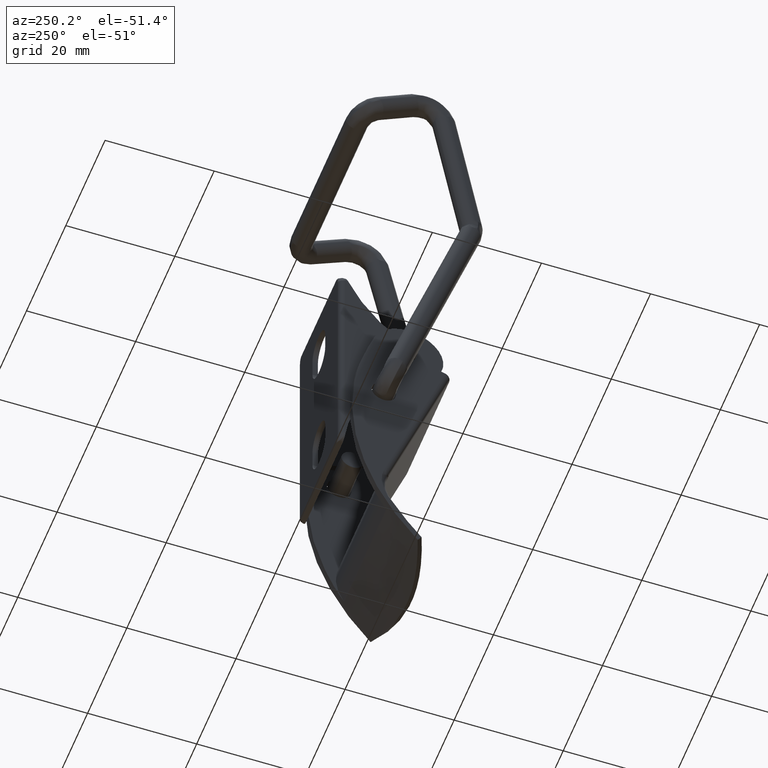
[diagram: clean part render]
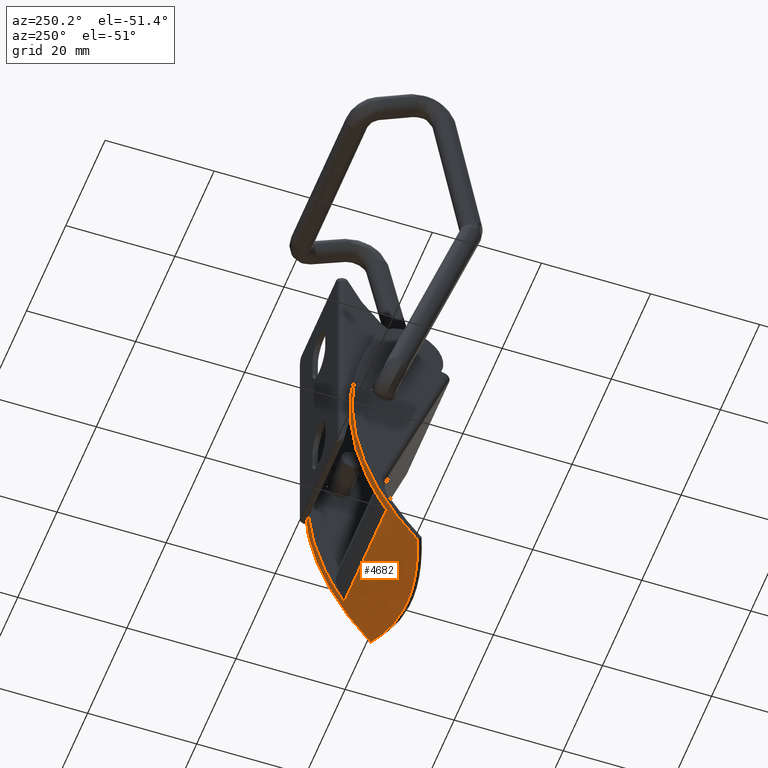
[diagram: same view with one face highlighted and labeled with its STEP entity id]
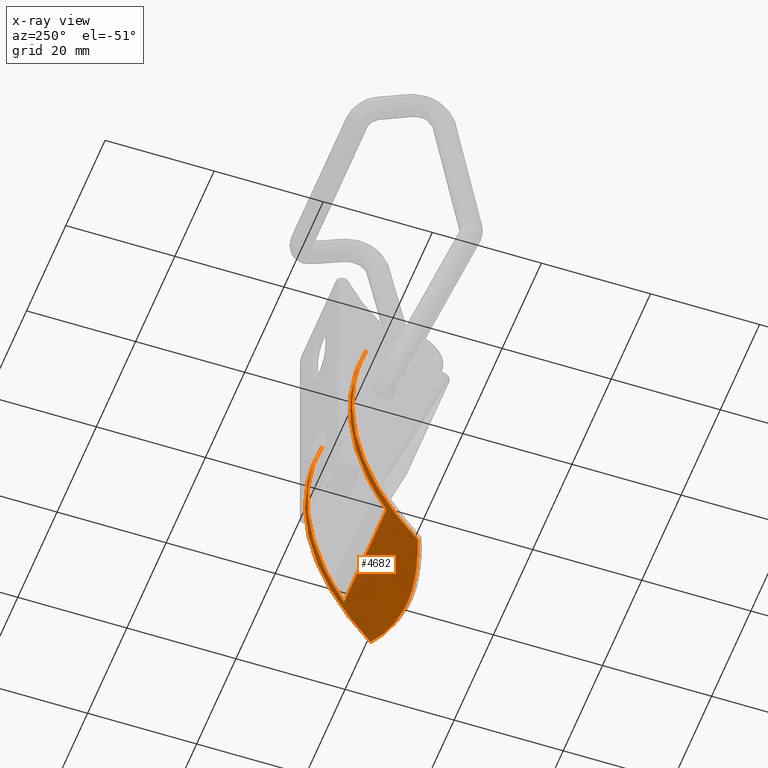
[diagram: x-ray of the same camera — body ghosted, the highlighted face saturated]
A machine part, auxiliary view. The second image highlights one B-rep face of the part: STEP entity #4682.
The next image is the same camera in x-ray: the body ghosted, the highlighted face saturated — about 0% of this face is hidden behind the body in this view.
In plain terms, the highlighted face is a freeform B-spline surface patch.
Its self-contained STEP definition (entity closure, byte-faithful):
#3988=CARTESIAN_POINT('',(10.800000000000001,7.351222833274220,-1.237908472875666));
#3989=VERTEX_POINT('',#3988);
#3995=CARTESIAN_POINT('',(10.800000000000001,3.491723439071675,-43.093581012958452));
#3996=VERTEX_POINT('',#3995);
#3997=CARTESIAN_POINT('',(10.800000000000001,7.351222833274220,-1.237908472875666));
#3998=CARTESIAN_POINT('',(10.800000000000001,15.116134762227537,-23.059686672458977));
#3999=CARTESIAN_POINT('',(10.800000000000001,3.491723439071712,-43.093581012958467));
#4007=(BOUNDED_CURVE()B_SPLINE_CURVE(2,(#3997,#3998,#3999),.UNSPECIFIED.,.F.,.U.)CURVE()GEOMETRIC_REPRESENTATION_ITEM()QUASI_UNIFORM_CURVE()RATIONAL_B_SPLINE_CURVE((1.0,0.907370207833799,1.0))REPRESENTATION_ITEM(''));
#4008=EDGE_CURVE('',#3989,#3996,#4007,.T.);
#4319=CARTESIAN_POINT('',(11.999700000000001,-1.800441101581595,-50.548769654623598));
#4320=VERTEX_POINT('',#4319);
#4368=CARTESIAN_POINT('',(-12.0,-1.800327680869380,-50.548637394887393));
#4369=VERTEX_POINT('',#4368);
#4377=CARTESIAN_POINT('',(-12.000000000000011,-1.800327680869381,-50.548637394887443));
#4378=CARTESIAN_POINT('',(-11.082257795288429,-2.147301615108073,-50.953244648169871));
#4379=CARTESIAN_POINT('',(-10.144366484401029,-2.465155834544160,-51.310892424356588));
#4380=CARTESIAN_POINT('',(-8.225379689255352,-3.030285627931445,-51.932931185863971));
#4381=CARTESIAN_POINT('',(-7.244284325683143,-3.277562118253880,-52.197321774737617));
#4382=CARTESIAN_POINT('',(-5.736454682988764,-3.584187215474784,-52.520525320017668));
#4383=CARTESIAN_POINT('',(-5.227797054403064,-3.675658587683067,-52.615988812778788));
#4384=CARTESIAN_POINT('',(-4.455110162659131,-3.795145213811012,-52.739956990909427));
#4385=CARTESIAN_POINT('',(-4.195930007933858,-3.832019346426704,-52.778072354226580));
#4386=CARTESIAN_POINT('',(-3.674215325152278,-3.899573157093331,-52.847715467953478));
#4387=CARTESIAN_POINT('',(-3.411249007813451,-3.930284451381066,-52.879275453781382));
#4388=CARTESIAN_POINT('',(-2.099702148873025,-4.066503551088239,-53.018970115514797));
#4389=CARTESIAN_POINT('',(-1.053014184085137,-4.121098793358340,-53.074175807225217));
#4390=CARTESIAN_POINT('',(1.035344092723734,-4.121709979235948,-53.074796742458737));
#4391=CARTESIAN_POINT('',(2.077014358148359,-4.067729878400605,-53.020206165222177));
#4392=CARTESIAN_POINT('',(3.635804333514295,-3.907500568505123,-52.855920530753849));
#4393=CARTESIAN_POINT('',(4.154781634922055,-3.840901975268446,-52.787399876906584));
#4394=CARTESIAN_POINT('',(4.802732240904207,-3.741529571397720,-52.684336530944023));
#4395=CARTESIAN_POINT('',(4.932417469262341,-3.720826468455582,-52.662828974304702));
#4396=CARTESIAN_POINT('',(5.190917973184958,-3.677952216554683,-52.618202798757267));
#4397=CARTESIAN_POINT('',(5.577352404527899,-3.611447184567766,-52.548855795505759));
#4398=CARTESIAN_POINT('',(5.959912091606113,-3.538529053995403,-52.472381233831207));
#4399=CARTESIAN_POINT('',(7.226804172311352,-3.281931991804373,-52.201992931702208));
#4400=CARTESIAN_POINT('',(8.213837912245248,-3.033466863826681,-51.936391784774500));
#4401=CARTESIAN_POINT('',(10.141033335575090,-2.466353498534151,-51.312251368341968));
#4402=CARTESIAN_POINT('',(11.081190143860860,-2.147697218987133,-50.953703106974750));
#4403=CARTESIAN_POINT('',(11.999700000000010,-1.800441101581572,-50.548769654623662));
#4404=B_SPLINE_CURVE_WITH_KNOTS('',3,(#4377,#4378,#4379,#4380,#4381,#4382,#4383,#4384,#4385,#4386,#4387,#4388,#4389,#4390,#4391,#4392,#4393,#4394,#4395,#4396,#4397,#4398,#4399,#4400,#4401,#4402,#4403),.UNSPECIFIED.,.F.,.U.,(4,2,2,2,2,2,2,2,2,2,1,2,2,4),(0.0,0.125000000000001,0.250000000000001,0.312500000000001,0.343750000000001,0.375000000000001,0.500000000000001,0.625000000000001,0.687500000000001,0.703125000000001,0.718750000000001,0.750000000000001,0.875000000000001,1.0),.UNSPECIFIED.);
#4405=EDGE_CURVE('',#4369,#4320,#4404,.T.);
#4425=CARTESIAN_POINT('',(-10.800000000000001,3.491723439071675,-43.093581012958452));
#4426=VERTEX_POINT('',#4425);
#4427=CARTESIAN_POINT('',(-10.800000000000001,3.491723439071675,-43.093581012958452));
#4428=CARTESIAN_POINT('',(10.800000000000001,3.491723439071675,-43.093581012958452));
#4429=QUASI_UNIFORM_CURVE('',1,(#4427,#4428),.UNSPECIFIED.,.F.,.U.);
#4430=EDGE_CURVE('',#4426,#3996,#4429,.T.);
#4475=CARTESIAN_POINT('',(-10.800000000000001,7.351222833274230,-1.237908472875664));
#4476=VERTEX_POINT('',#4475);
#4477=CARTESIAN_POINT('',(-10.800000000000001,7.351222833274230,-1.237908472875664));
#4478=CARTESIAN_POINT('',(-10.800000000000001,15.116134762227537,-23.059686672458987));
#4479=CARTESIAN_POINT('',(-10.800000000000001,3.491723439071712,-43.093581012958467));
#4487=(BOUNDED_CURVE()B_SPLINE_CURVE(2,(#4477,#4478,#4479),.UNSPECIFIED.,.F.,.U.)CURVE()GEOMETRIC_REPRESENTATION_ITEM()QUASI_UNIFORM_CURVE()RATIONAL_B_SPLINE_CURVE((1.0,0.907370207833799,1.0))REPRESENTATION_ITEM(''));
#4488=EDGE_CURVE('',#4476,#4426,#4487,.T.);
#4600=CARTESIAN_POINT('',(-12.0,7.351222833274220,-1.237908472875666));
#4601=VERTEX_POINT('',#4600);
#4607=CARTESIAN_POINT('',(-12.0,-1.800327680869379,-50.548637394887422));
#4608=CARTESIAN_POINT('',(-12.000000000000002,17.068302720041849,-28.545875900815091));
#4609=CARTESIAN_POINT('',(-12.0,7.351222833274190,-1.237908472875682));
#4617=(BOUNDED_CURVE()B_SPLINE_CURVE(2,(#4607,#4608,#4609),.UNSPECIFIED.,.F.,.U.)CURVE()GEOMETRIC_REPRESENTATION_ITEM()QUASI_UNIFORM_CURVE()RATIONAL_B_SPLINE_CURVE((1.0,0.865141672581257,1.0))REPRESENTATION_ITEM(''));
#4618=EDGE_CURVE('',#4369,#4601,#4617,.T.);
#4636=CARTESIAN_POINT('',(-12.599992500000001,6.641370222941582,0.637095145983039));
#4637=CARTESIAN_POINT('',(12.614692312500001,6.641370222941582,0.637095145983039));
#4638=CARTESIAN_POINT('',(-12.599992500000001,19.450290840422291,-31.250509699096806));
#4639=CARTESIAN_POINT('',(12.614692312499995,19.450290840422291,-31.250509699096806));
#4640=CARTESIAN_POINT('',(-12.599992500000001,-5.729046273246526,-54.636162836375270));
#4641=CARTESIAN_POINT('',(12.614692312500001,-5.729046273246526,-54.636162836375270));
#4649=(BOUNDED_SURFACE()B_SPLINE_SURFACE(1,2,((#4636,#4638,#4640),(#4637,#4639,#4641)),.UNSPECIFIED.,.F.,.F.,.U.)B_SPLINE_SURFACE_WITH_KNOTS((2,2),(3,3),(0.0,25.214684812500000),(0.0,62.101650692566217),.UNSPECIFIED.)GEOMETRIC_REPRESENTATION_ITEM()RATIONAL_B_SPLINE_SURFACE(((1.0,0.824126188622015,1.0),(1.0,0.824126188622015,1.0)))REPRESENTATION_ITEM('')SURFACE());
#4650=ORIENTED_EDGE('',*,*,#4405,.F.);
#4651=ORIENTED_EDGE('',*,*,#4618,.T.);
#4652=CARTESIAN_POINT('',(-12.0,7.351222833274220,-1.237908472875666));
#4653=CARTESIAN_POINT('',(-10.800000000000001,7.351222833274230,-1.237908472875664));
#4654=QUASI_UNIFORM_CURVE('',1,(#4652,#4653),.UNSPECIFIED.,.F.,.U.);
#4655=EDGE_CURVE('',#4601,#4476,#4654,.T.);
#4656=ORIENTED_EDGE('',*,*,#4655,.T.);
#4657=ORIENTED_EDGE('',*,*,#4488,.T.);
#4658=ORIENTED_EDGE('',*,*,#4430,.T.);
#4659=ORIENTED_EDGE('',*,*,#4008,.F.);
#4660=CARTESIAN_POINT('',(11.999700000000001,7.351222833274220,-1.237908472875666));
#4661=VERTEX_POINT('',#4660);
#4662=CARTESIAN_POINT('',(10.800000000000001,7.351222833274220,-1.237908472875666));
#4663=CARTESIAN_POINT('',(11.999700000000001,7.351222833274220,-1.237908472875666));
#4664=QUASI_UNIFORM_CURVE('',1,(#4662,#4663),.UNSPECIFIED.,.F.,.U.);
#4665=EDGE_CURVE('',#3989,#4661,#4664,.T.);
#4666=ORIENTED_EDGE('',*,*,#4665,.T.);
#4667=CARTESIAN_POINT('',(11.999700000000001,-1.800441101581556,-50.548769654623641));
#4668=CARTESIAN_POINT('',(11.999700000000001,17.068341739646300,-28.545985557841639));
#4669=CARTESIAN_POINT('',(11.999700000000001,7.351222833274190,-1.237908472875682));
#4677=(BOUNDED_CURVE()B_SPLINE_CURVE(2,(#4667,#4668,#4669),.UNSPECIFIED.,.F.,.U.)CURVE()GEOMETRIC_REPRESENTATION_ITEM()QUASI_UNIFORM_CURVE()RATIONAL_B_SPLINE_CURVE((1.0,0.865140798756933,1.0))REPRESENTATION_ITEM(''));
#4678=EDGE_CURVE('',#4320,#4661,#4677,.T.);
#4679=ORIENTED_EDGE('',*,*,#4678,.F.);
#4680=EDGE_LOOP('',(#4650,#4651,#4656,#4657,#4658,#4659,#4666,#4679));
#4681=FACE_OUTER_BOUND('',#4680,.T.);
#4682=ADVANCED_FACE('',(#4681),#4649,.T.);